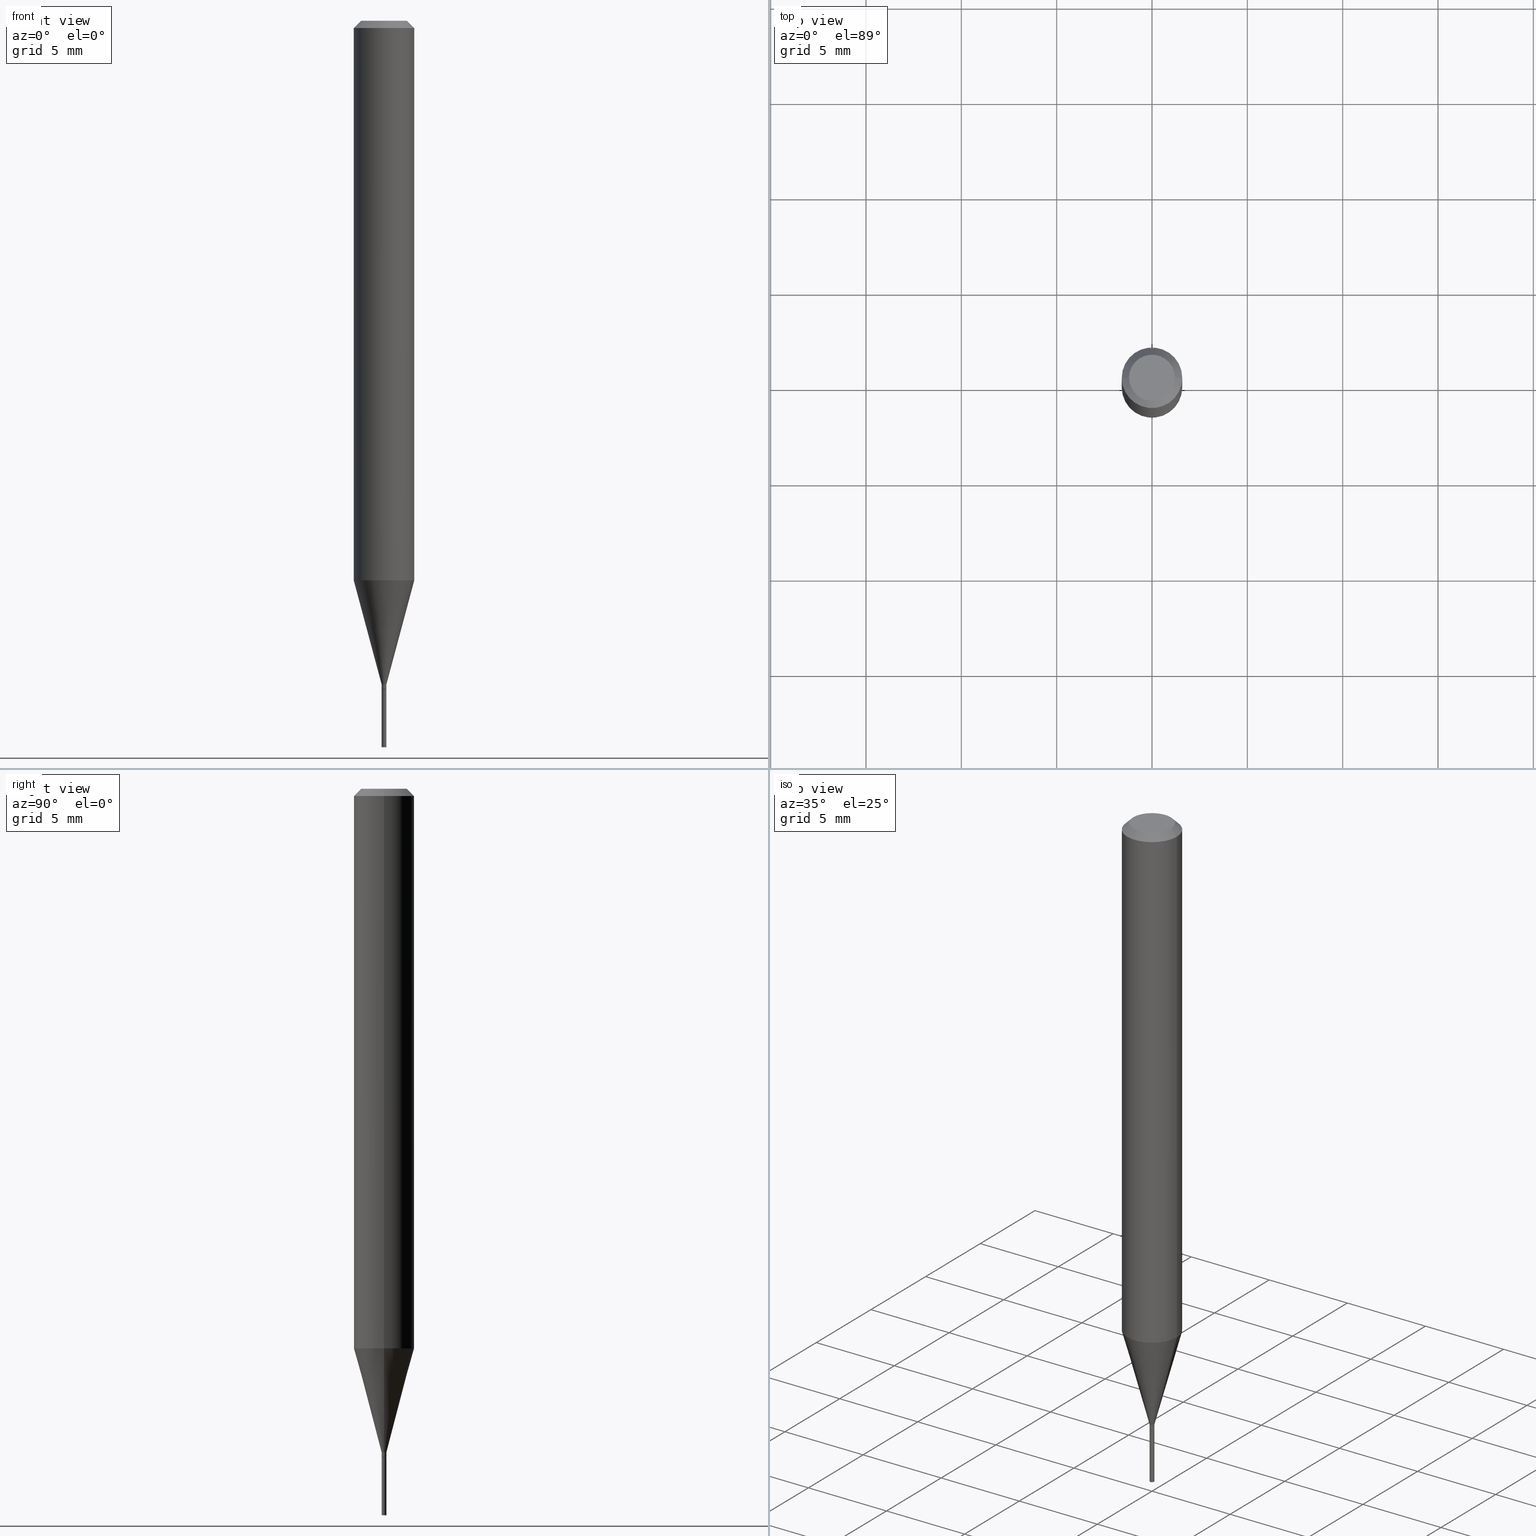
[diagram: canonical four-view strip — front | top / right | iso, engineering-drawing reading convention]
A machine part, canonical four-view strip (front | top / right | iso — engineering-drawing reading convention). The complete STEP part file that produces these views, byte-faithful:
ISO-10303-21;
HEADER;
FILE_DESCRIPTION (( 'STEP AP203' ),
    '1' );
FILE_NAME ('04238.STEP',
    '2024-03-14T17:27:27',
    ( '' ),
    ( '' ),
    'SwSTEP 2.0',
    'SolidWorks 2023',
    '' );
FILE_SCHEMA (( 'CONFIG_CONTROL_DESIGN' ));
ENDSEC;

DATA;
#1 = DIRECTION ( 'NONE',  ( 1.000000000000000000, -6.982962677686250144E-15, 0.000000000000000000 ) ) ;
#2 = ORIENTED_EDGE ( 'NONE', *, *, #358, .F. ) ;
#3 = CARTESIAN_POINT ( 'NONE',  ( 0.000000000000000000, 0.000000000000000000, 0.000000000000000000 ) ) ;
#4 = AXIS2_PLACEMENT_3D ( 'NONE', #55, #138, #413 ) ;
#5 = ADVANCED_FACE ( 'NONE', ( #90 ), #182, .T. ) ;
#6 = CARTESIAN_POINT ( 'NONE',  ( -0.004999999999999920307, -4.780971370146115787E-15, -1.379500000000000171 ) ) ;
#7 = CARTESIAN_POINT ( 'NONE',  ( 2.825511969075693350E-29, -4.034082253576240820E-15, -1.155407078564790080 ) ) ;
#8 = CARTESIAN_POINT ( 'NONE',  ( 3.576687321579069994E-29, -5.368277968210015545E-15, -1.500000000000000222 ) ) ;
#9 = ORIENTED_EDGE ( 'NONE', *, *, #406, .T. ) ;
#10 = CIRCLE ( 'NONE', #70, 0.06250000000000000000 ) ;
#11 = ADVANCED_FACE ( 'NONE', ( #417 ), #462, .T. ) ;
#12 = CARTESIAN_POINT ( 'NONE',  ( 3.374746952535488593E-29, -4.818244247603541543E-15, -1.380000000000000115 ) ) ;
#13 = EDGE_LOOP ( 'NONE', ( #124, #84, #391, #304 ) ) ;
#14 = DIRECTION ( 'NONE',  ( 2.445468806185136597E-29, -3.491481338843145583E-15, -1.000000000000000000 ) ) ;
#15 = PERSON_AND_ORGANIZATION ( #201, #426 ) ;
#16 = ORIENTED_EDGE ( 'NONE', *, *, #211, .T. ) ;
#17 = CARTESIAN_POINT ( 'NONE',  ( 3.373524218132396352E-29, -4.816498506934120039E-15, -1.379500000000000171 ) ) ;
#18 = CONICAL_SURFACE ( 'NONE', #217, 0.004999999999999938521, 0.2617993877991501850 ) ;
#19 = CC_DESIGN_PERSON_AND_ORGANIZATION_ASSIGNMENT ( #26, #178, ( #28 ) ) ;
#20 = LOCAL_TIME ( 13, 27, 27.00000000000000000, #36 ) ;
#21 = ORIENTED_EDGE ( 'NONE', *, *, #289, .T. ) ;
#22 = CARTESIAN_POINT ( 'NONE',  ( 0.000000000000000000, 0.000000000000000000, 0.000000000000000000 ) ) ;
#23 = ORIENTED_EDGE ( 'NONE', *, *, #294, .T. ) ;
#24 = CARTESIAN_POINT ( 'NONE',  ( 3.374746952535488593E-29, -4.818244247603541543E-15, -1.380000000000000115 ) ) ;
#25 = EDGE_CURVE ( 'NONE', #206, #163, #32, .T. ) ;
#26 = PERSON_AND_ORGANIZATION ( #201, #426 ) ;
#27 = CIRCLE ( 'NONE', #279, 0.004499999999999996191 ) ;
#28 = PRODUCT_DEFINITION_FORMATION_WITH_SPECIFIED_SOURCE ( 'ANY', '', #255, .NOT_KNOWN. ) ;
#29 = SECURITY_CLASSIFICATION_LEVEL ( 'unclassified' ) ;
#30 = DIRECTION ( 'NONE',  ( 1.000000000000000000, -6.982962677686266711E-15, 0.000000000000000000 ) ) ;
#31 = COORDINATED_UNIVERSAL_TIME_OFFSET ( 5, 0, .BEHIND. ) ;
#32 = CIRCLE ( 'NONE', #394, 0.06250000000000000000 ) ;
#33 = CARTESIAN_POINT ( 'NONE',  ( 0.004999999999999997502, -5.272136821653149826E-15, -1.500000000000000222 ) ) ;
#34 = AXIS2_PLACEMENT_3D ( 'NONE', #449, #136, #127 ) ;
#35 = CARTESIAN_POINT ( 'NONE',  ( -0.004499999999999996191, -4.783620597320226200E-15, -1.380000000000000115 ) ) ;
#36 = COORDINATED_UNIVERSAL_TIME_OFFSET ( 5, 0, .BEHIND. ) ;
#37 = FACE_OUTER_BOUND ( 'NONE', #273, .T. ) ;
#38 = EDGE_CURVE ( 'NONE', #54, #89, #27, .T. ) ;
#39 = CARTESIAN_POINT ( 'NONE',  ( 3.374746952535488593E-29, -4.818244247603541543E-15, -1.380000000000000115 ) ) ;
#40 = CIRCLE ( 'NONE', #311, 0.04749999999999999362 ) ;
#41 = APPROVAL_PERSON_ORGANIZATION ( #284, #88, #421 ) ;
#42 = CARTESIAN_POINT ( 'NONE',  ( 3.491481338846506475E-17, 0.004999999999995180175, -1.380000000000000115 ) ) ;
#43 = CARTESIAN_POINT ( 'NONE',  ( 2.825511969075693350E-29, -4.034082253576240820E-15, -1.155407078564790080 ) ) ;
#44 = EDGE_CURVE ( 'NONE', #274, #410, #409, .T. ) ;
#45 = VERTEX_POINT ( 'NONE', #73 ) ;
#46 = DIRECTION ( 'NONE',  ( -2.445468806185136597E-29, 3.491481338843145583E-15, 1.000000000000000000 ) ) ;
#47 = CARTESIAN_POINT ( 'NONE',  ( -0.004999999999999929848, 3.552713678800451083E-17, -2.459467545127418104E-31 ) ) ;
#48 = AXIS2_PLACEMENT_3D ( 'NONE', #219, #436, #291 ) ;
#49 = ADVANCED_BREP_SHAPE_REPRESENTATION ( '04238', ( #102, #356, #34 ), #249 ) ;
#50 = ORIENTED_EDGE ( 'NONE', *, *, #416, .T. ) ;
#51 = APPROVAL_PERSON_ORGANIZATION ( #141, #309, #396 ) ;
#52 = DIRECTION ( 'NONE',  ( 1.000000000000000000, -6.982962677686336130E-15, 0.000000000000000000 ) ) ;
#53 = EDGE_LOOP ( 'NONE', ( #134, #375 ) ) ;
#54 = VERTEX_POINT ( 'NONE', #221 ) ;
#55 = CARTESIAN_POINT ( 'NONE',  ( 3.350292264473637048E-29, -4.783329434215109894E-15, -1.370000000000000107 ) ) ;
#56 = ADVANCED_FACE ( 'NONE', ( #392 ), #258, .F. ) ;
#57 = ORIENTED_EDGE ( 'NONE', *, *, #190, .F. ) ;
#58 = CARTESIAN_POINT ( 'NONE',  ( 0.004999999999999938521, -4.818244247603540754E-15, -1.370000000000000107 ) ) ;
#59 = CARTESIAN_POINT ( 'NONE',  ( 0.000000000000000000, 0.000000000000000000, 0.000000000000000000 ) ) ;
#60 = EDGE_LOOP ( 'NONE', ( #99, #50, #16, #378 ) ) ;
#61 = DIRECTION ( 'NONE',  ( 1.000000000000000000, -6.982962677686336130E-15, 0.000000000000000000 ) ) ;
#62 = AXIS2_PLACEMENT_3D ( 'NONE', #59, #205, #451 ) ;
#63 = DIRECTION ( 'NONE',  ( 0.2588190451025214611, 1.565188264969620982E-15, 0.9659258262890679791 ) ) ;
#64 =( NAMED_UNIT ( * ) SI_UNIT ( $, .STERADIAN. ) SOLID_ANGLE_UNIT ( ) );
#65 = APPROVAL_DATE_TIME ( #282, #88 ) ;
#66 = CALENDAR_DATE ( 2024, 14, 3 ) ;
#67 = AXIS2_PLACEMENT_3D ( 'NONE', #465, #147, #362 ) ;
#68 = CARTESIAN_POINT ( 'NONE',  ( 0.004499999999999996191, -4.849667579653129396E-15, -1.380000000000000115 ) ) ;
#69 = CARTESIAN_POINT ( 'NONE',  ( 0.06250000000000000000, -4.888073874380388472E-16, -0.01499999999999999944 ) ) ;
#70 = AXIS2_PLACEMENT_3D ( 'NONE', #43, #46, #192 ) ;
#71 = ADVANCED_FACE ( 'NONE', ( #37 ), #233, .T. ) ;
#72 = PRODUCT_DEFINITION_SHAPE ( 'NONE', 'NONE',  #118 ) ;
#73 = CARTESIAN_POINT ( 'NONE',  ( -0.04749999999999999362, 3.578768372314216422E-16, 3.291702847796717707E-16 ) ) ;
#74 = DIRECTION ( 'NONE',  ( -2.445468806185136597E-29, 3.491481338843145583E-15, 1.000000000000000000 ) ) ;
#75 = DIRECTION ( 'NONE',  ( -0.7071067811865647812, 7.493145998870415691E-15, 0.7071067811865301422 ) ) ;
#76 = AXIS2_PLACEMENT_3D ( 'NONE', #155, #222, #189 ) ;
#77 = DIRECTION ( 'NONE',  ( -2.438088387897960049E-29, 3.491481338843145188E-15, 1.000000000000000000 ) ) ;
#78 = EDGE_LOOP ( 'NONE', ( #452, #9, #184, #381 ) ) ;
#79 = ADVANCED_FACE ( 'NONE', ( #188 ), #329, .T. ) ;
#80 = FACE_OUTER_BOUND ( 'NONE', #53, .T. ) ;
#81 = ORIENTED_EDGE ( 'NONE', *, *, #416, .F. ) ;
#82 = DIRECTION ( 'NONE',  ( -2.438088387897960049E-29, 3.491481338843145188E-15, 1.000000000000000000 ) ) ;
#83 = AXIS2_PLACEMENT_3D ( 'NONE', #121, #397, #52 ) ;
#84 = ORIENTED_EDGE ( 'NONE', *, *, #317, .T. ) ;
#85 = CIRCLE ( 'NONE', #129, 0.004999999999999920307 ) ;
#86 = DIRECTION ( 'NONE',  ( -1.000000000000000000, 6.982962677686266711E-15, 0.000000000000000000 ) ) ;
#87 = DIRECTION ( 'NONE',  ( 1.000000000000000000, -6.982962677686266711E-15, 4.876176775795935793E-29 ) ) ;
#88 = APPROVAL ( #247, 'UNSPECIFIED' ) ;
#89 = VERTEX_POINT ( 'NONE', #35 ) ;
#90 = FACE_OUTER_BOUND ( 'NONE', #78, .T. ) ;
#91 = LINE ( 'NONE', #58, #360 ) ;
#92 =( NAMED_UNIT ( * ) PLANE_ANGLE_UNIT ( ) SI_UNIT ( $, .RADIAN. ) );
#93 = ORIENTED_EDGE ( 'NONE', *, *, #38, .F. ) ;
#94 = AXIS2_PLACEMENT_3D ( 'NONE', #432, #372, #357 ) ;
#95 = ORIENTED_EDGE ( 'NONE', *, *, #422, .T. ) ;
#96 = CARTESIAN_POINT ( 'NONE',  ( 0.06250000000000000000, -4.470517420931631701E-15, -1.155407078564790080 ) ) ;
#97 = VECTOR ( 'NONE', #404, 39.37007874015748143 ) ;
#98 = ORIENTED_EDGE ( 'NONE', *, *, #211, .F. ) ;
#99 = ORIENTED_EDGE ( 'NONE', *, *, #423, .F. ) ;
#100 = PERSON_AND_ORGANIZATION_ROLE ( 'creator' ) ;
#101 = DATE_AND_TIME ( #431, #20 ) ;
#102 = MANIFOLD_SOLID_BREP ( 'Body-Move/Copy2[1]', #450 ) ;
#103 = APPROVAL_STATUS ( 'not_yet_approved' ) ;
#104 = CIRCLE ( 'NONE', #168, 0.06250000000000000000 ) ;
#105 = APPROVAL_STATUS ( 'not_yet_approved' ) ;
#106 = LOCAL_TIME ( 13, 27, 27.00000000000000000, #31 ) ;
#107 = EDGE_CURVE ( 'NONE', #54, #405, #430, .T. ) ;
#108 = DIRECTION ( 'NONE',  ( -2.445468806185136597E-29, 3.491481338843145583E-15, 1.000000000000000000 ) ) ;
#109 = DIRECTION ( 'NONE',  ( -2.445468806185136597E-29, 3.491481338843145583E-15, 1.000000000000000000 ) ) ;
#110 = CC_DESIGN_PERSON_AND_ORGANIZATION_ASSIGNMENT ( #181, #100, ( #118 ) ) ;
#111 = CLOSED_SHELL ( 'NONE', ( #216, #71, #5, #253, #223, #438, #393, #11, #56, #328, #162, #260 ) ) ;
#112 = AXIS2_PLACEMENT_3D ( 'NONE', #183, #290, #150 ) ;
#113 = LOCAL_TIME ( 13, 27, 27.00000000000000000, #386 ) ;
#114 = CARTESIAN_POINT ( 'NONE',  ( -8.049756633517713463E-45, 1.149291906609916432E-30, 3.291702847796741866E-16 ) ) ;
#115 = CARTESIAN_POINT ( 'NONE',  ( 0.004999999999999997502, -3.491481338843131630E-17, 2.438088387897967108E-31 ) ) ;
#116 = FACE_OUTER_BOUND ( 'NONE', #135, .T. ) ;
#117 = DIRECTION ( 'NONE',  ( -2.445468806185136597E-29, 3.491481338843145583E-15, 1.000000000000000000 ) ) ;
#118 = PRODUCT_DEFINITION ( 'UNKNOWN', '', #28, #220 ) ;
#119 = CC_DESIGN_APPROVAL ( #88, ( #118 ) ) ;
#120 = ORIENTED_EDGE ( 'NONE', *, *, #464, .F. ) ;
#121 = CARTESIAN_POINT ( 'NONE',  ( 3.668203209277704895E-29, -5.237222008264718177E-15, -1.500000000000000222 ) ) ;
#122 = ORIENTED_EDGE ( 'NONE', *, *, #252, .F. ) ;
#123 = CYLINDRICAL_SURFACE ( 'NONE', #146, 0.06250000000000000000 ) ;
#124 = ORIENTED_EDGE ( 'NONE', *, *, #422, .F. ) ;
#125 = ORIENTED_EDGE ( 'NONE', *, *, #207, .F. ) ;
#126 = EDGE_CURVE ( 'NONE', #131, #274, #297, .T. ) ;
#127 = DIRECTION ( 'NONE',  ( 1.000000000000000000, 0.000000000000000000, 0.000000000000000000 ) ) ;
#128 = CIRCLE ( 'NONE', #387, 0.004999999999999997502 ) ;
#129 = AXIS2_PLACEMENT_3D ( 'NONE', #17, #269, #346 ) ;
#130 = DIRECTION ( 'NONE',  ( -2.445468806185136877E-29, 3.491481338843145188E-15, 1.000000000000000000 ) ) ;
#131 = VERTEX_POINT ( 'NONE', #33 ) ;
#132 = ORIENTED_EDGE ( 'NONE', *, *, #252, .T. ) ;
#133 = DIRECTION ( 'NONE',  ( -2.445468806185136597E-29, 3.491481338843145583E-15, 1.000000000000000000 ) ) ;
#134 = ORIENTED_EDGE ( 'NONE', *, *, #294, .F. ) ;
#135 = EDGE_LOOP ( 'NONE', ( #229, #95, #441, #57 ) ) ;
#136 = DIRECTION ( 'NONE',  ( 0.000000000000000000, 0.000000000000000000, 1.000000000000000000 ) ) ;
#137 = AXIS2_PLACEMENT_3D ( 'NONE', #22, #210, #172 ) ;
#138 = DIRECTION ( 'NONE',  ( -2.445468806185136597E-29, 3.491481338843145583E-15, 1.000000000000000000 ) ) ;
#139 = VECTOR ( 'NONE', #415, 39.37007874015748143 ) ;
#140 = EDGE_LOOP ( 'NONE', ( #414, #382, #149, #81 ) ) ;
#141 = PERSON_AND_ORGANIZATION ( #201, #426 ) ;
#142 = ORIENTED_EDGE ( 'NONE', *, *, #369, .F. ) ;
#143 = DATE_TIME_ROLE ( 'creation_date' ) ;
#144 = EDGE_CURVE ( 'NONE', #342, #193, #330, .T. ) ;
#145 = COORDINATED_UNIVERSAL_TIME_OFFSET ( 5, 0, .BEHIND. ) ;
#146 = AXIS2_PLACEMENT_3D ( 'NONE', #261, #437, #161 ) ;
#147 = DIRECTION ( 'NONE',  ( -2.445468806185136597E-29, 3.491481338843145583E-15, 1.000000000000000000 ) ) ;
#148 = CARTESIAN_POINT ( 'NONE',  ( 0.06250000000000000000, -4.364351673553916694E-16, 3.047610484872459871E-30 ) ) ;
#149 = ORIENTED_EDGE ( 'NONE', *, *, #369, .T. ) ;
#150 = DIRECTION ( 'NONE',  ( -1.000000000000000000, 6.982962677686265922E-15, -4.876176775795935793E-29 ) ) ;
#151 = CARTESIAN_POINT ( 'NONE',  ( -0.004999999999999938521, -4.168897670576641529E-15, -1.370000000000000107 ) ) ;
#152 = ORIENTED_EDGE ( 'NONE', *, *, #196, .T. ) ;
#153 = CARTESIAN_POINT ( 'NONE',  ( 0.000000000000000000, 0.000000000000000000, 0.000000000000000000 ) ) ;
#154 = DIRECTION ( 'NONE',  ( 1.000000000000000000, -6.982962677686266711E-15, 4.876176775795936914E-29 ) ) ;
#155 = CARTESIAN_POINT ( 'NONE',  ( 3.668203209277705088E-31, -5.237222008264718399E-17, -0.01499999999999999944 ) ) ;
#156 = DIRECTION ( 'NONE',  ( -1.000000000000000000, 6.982962677686265922E-15, -4.876176775795935793E-29 ) ) ;
#157 = CC_DESIGN_PERSON_AND_ORGANIZATION_ASSIGNMENT ( #15, #460, ( #255 ) ) ;
#158 = FACE_OUTER_BOUND ( 'NONE', #171, .T. ) ;
#159 = AXIS2_PLACEMENT_3D ( 'NONE', #384, #14, #86 ) ;
#160 = EDGE_LOOP ( 'NONE', ( #266, #345, #270, #98 ) ) ;
#161 = DIRECTION ( 'NONE',  ( 1.000000000000000000, -6.982962677686266711E-15, 4.876176775795935793E-29 ) ) ;
#162 = ADVANCED_FACE ( 'NONE', ( #402 ), #318, .T. ) ;
#163 = VERTEX_POINT ( 'NONE', #371 ) ;
#164 = DIMENSIONAL_EXPONENTS ( 1.000000000000000000, 0.000000000000000000, 0.000000000000000000, 0.000000000000000000, 0.000000000000000000, 0.000000000000000000, 0.000000000000000000 ) ;
#165 = ORIENTED_EDGE ( 'NONE', *, *, #196, .F. ) ;
#166 = CYLINDRICAL_SURFACE ( 'NONE', #332, 0.06250000000000000000 ) ;
#167 = CARTESIAN_POINT ( 'NONE',  ( 0.000000000000000000, 0.000000000000000000, 0.000000000000000000 ) ) ;
#168 = AXIS2_PLACEMENT_3D ( 'NONE', #7, #74, #370 ) ;
#169 = ORIENTED_EDGE ( 'NONE', *, *, #336, .T. ) ;
#170 = LINE ( 'NONE', #379, #139 ) ;
#171 = EDGE_LOOP ( 'NONE', ( #93, #122 ) ) ;
#172 = DIRECTION ( 'NONE',  ( 1.000000000000000000, -6.982962677686267499E-15, 4.876176775795935232E-29 ) ) ;
#173 = CC_DESIGN_DATE_AND_TIME_ASSIGNMENT ( #319, #320, ( #244 ) ) ;
#174 = CARTESIAN_POINT ( 'NONE',  ( 3.374746952535488593E-29, -4.818244247603541543E-15, -1.380000000000000115 ) ) ;
#175 = DIRECTION ( 'NONE',  ( -2.445468806185136597E-29, 3.491481338843145583E-15, 1.000000000000000000 ) ) ;
#176 = AXIS2_PLACEMENT_3D ( 'NONE', #153, #191, #339 ) ;
#177 = CIRCLE ( 'NONE', #324, 0.004999999999999938521 ) ;
#178 = PERSON_AND_ORGANIZATION_ROLE ( 'creator' ) ;
#179 = CC_DESIGN_DATE_AND_TIME_ASSIGNMENT ( #214, #143, ( #118 ) ) ;
#180 = PERSON_AND_ORGANIZATION ( #201, #426 ) ;
#181 = PERSON_AND_ORGANIZATION ( #201, #426 ) ;
#182 = CONICAL_SURFACE ( 'NONE', #302, 0.06250000000000000000, 0.7853981633974373988 ) ;
#183 = CARTESIAN_POINT ( 'NONE',  ( 3.316907271900976096E-16, 0.04749999999999999362, -1.260221205212306812E-18 ) ) ;
#184 = ORIENTED_EDGE ( 'NONE', *, *, #25, .T. ) ;
#185 = APPLICATION_CONTEXT ( 'configuration controlled 3d designs of mechanical parts and assemblies' ) ;
#186 = CARTESIAN_POINT ( 'NONE',  ( -0.004999999999999997502, -4.992205991146124819E-15, -1.500000000000000222 ) ) ;
#187 = DIRECTION ( 'NONE',  ( 1.000000000000000000, -6.982962677686231212E-15, 0.000000000000000000 ) ) ;
#188 = FACE_OUTER_BOUND ( 'NONE', #199, .T. ) ;
#189 = DIRECTION ( 'NONE',  ( 1.000000000000000000, -6.982962677686266711E-15, 0.000000000000000000 ) ) ;
#190 = EDGE_CURVE ( 'NONE', #445, #206, #363, .T. ) ;
#191 = DIRECTION ( 'NONE',  ( -2.445468806185136597E-29, 3.491481338843145583E-15, 1.000000000000000000 ) ) ;
#192 = DIRECTION ( 'NONE',  ( 1.000000000000000000, -6.982962677686270655E-15, 0.000000000000000000 ) ) ;
#193 = VERTEX_POINT ( 'NONE', #151 ) ;
#194 = DIRECTION ( 'NONE',  ( 1.000000000000000000, -6.982962677686265922E-15, 4.876176775795935793E-29 ) ) ;
#195 = AXIS2_PLACEMENT_3D ( 'NONE', #8, #77, #194 ) ;
#196 = EDGE_CURVE ( 'NONE', #405, #342, #248, .T. ) ;
#197 = CIRCLE ( 'NONE', #433, 0.004499999999999996191 ) ;
#198 = CIRCLE ( 'NONE', #434, 0.004999999999999997502 ) ;
#199 = EDGE_LOOP ( 'NONE', ( #23, #306, #373, #403 ) ) ;
#200 = DIRECTION ( 'NONE',  ( -2.445468806185136597E-29, 3.491481338843145583E-15, 1.000000000000000000 ) ) ;
#201 = PERSON ( 'UNSPECIFIED', 'UNSPECIFIED', 'UNSPECIFIED', ('UNSPECIFIED'), ('UNSPECIFIED'), ('UNSPECIFIED') ) ;
#202 = EDGE_LOOP ( 'NONE', ( #254, #125, #420, #169 ) ) ;
#203 = CARTESIAN_POINT ( 'NONE',  ( 3.350292264473637048E-29, -4.783329434215109894E-15, -1.370000000000000107 ) ) ;
#204 = VERTEX_POINT ( 'NONE', #257 ) ;
#205 = DIRECTION ( 'NONE',  ( -2.445468806185136597E-29, 3.491481338843145583E-15, 1.000000000000000000 ) ) ;
#206 = VERTEX_POINT ( 'NONE', #69 ) ;
#207 = EDGE_CURVE ( 'NONE', #45, #204, #243, .T. ) ;
#208 = APPLICATION_PROTOCOL_DEFINITION ( 'international standard', 'config_control_design', 1994, #439 ) ;
#209 = FACE_OUTER_BOUND ( 'NONE', #235, .T. ) ;
#210 = DIRECTION ( 'NONE',  ( -2.445468806185136597E-29, 3.491481338843145583E-15, 1.000000000000000000 ) ) ;
#211 = EDGE_CURVE ( 'NONE', #447, #445, #91, .T. ) ;
#212 = CARTESIAN_POINT ( 'NONE',  ( 3.668203209277705088E-31, -5.237222008264718399E-17, -0.01499999999999999944 ) ) ;
#213 = VECTOR ( 'NONE', #251, 39.37007874015748143 ) ;
#214 = DATE_AND_TIME ( #66, #113 ) ;
#215 = PERSON_AND_ORGANIZATION ( #201, #426 ) ;
#216 = ADVANCED_FACE ( 'NONE', ( #242 ), #350, .T. ) ;
#217 = AXIS2_PLACEMENT_3D ( 'NONE', #368, #303, #428 ) ;
#218 = VECTOR ( 'NONE', #455, 39.37007874015748143 ) ;
#219 = CARTESIAN_POINT ( 'NONE',  ( 3.374746952535488593E-29, -4.818244247603541543E-15, -1.380000000000000115 ) ) ;
#220 = DESIGN_CONTEXT ( 'detailed design', #185, 'design' ) ;
#221 = CARTESIAN_POINT ( 'NONE',  ( 0.004499999999999996191, -4.849667579653129396E-15, -1.380000000000000115 ) ) ;
#222 = DIRECTION ( 'NONE',  ( -2.445468806185136597E-29, 3.491481338843145583E-15, 1.000000000000000000 ) ) ;
#223 = ADVANCED_FACE ( 'NONE', ( #226 ), #18, .T. ) ;
#224 = FACE_OUTER_BOUND ( 'NONE', #312, .T. ) ;
#225 = VECTOR ( 'NONE', #256, 39.37007874015748854 ) ;
#226 = FACE_OUTER_BOUND ( 'NONE', #160, .T. ) ;
#227 = DIRECTION ( 'NONE',  ( -2.445468806185136597E-29, 3.491481338843145583E-15, 1.000000000000000000 ) ) ;
#228 = DIRECTION ( 'NONE',  ( 1.000000000000000000, -6.982962677686231212E-15, 0.000000000000000000 ) ) ;
#229 = ORIENTED_EDGE ( 'NONE', *, *, #344, .T. ) ;
#230 = LINE ( 'NONE', #343, #293 ) ;
#231 = ORIENTED_EDGE ( 'NONE', *, *, #126, .T. ) ;
#232 = CARTESIAN_POINT ( 'NONE',  ( -0.06250000000000000000, 3.840629472727444916E-16, -0.01499999999999999944 ) ) ;
#233 = CONICAL_SURFACE ( 'NONE', #48, 0.004499999999999996191, 0.7853981633974728149 ) ;
#234 = LOCAL_TIME ( 13, 27, 27.00000000000000000, #145 ) ;
#235 = EDGE_LOOP ( 'NONE', ( #2, #21, #231, #380 ) ) ;
#236 = LINE ( 'NONE', #353, #286 ) ;
#237 = ORIENTED_EDGE ( 'NONE', *, *, #265, .F. ) ;
#238 = CYLINDRICAL_SURFACE ( 'NONE', #62, 0.004999999999999997502 ) ;
#239 = VERTEX_POINT ( 'NONE', #186 ) ;
#240 = PRODUCT_RELATED_PRODUCT_CATEGORY ( 'detail', '', ( #255 ) ) ;
#241 = EDGE_LOOP ( 'NONE', ( #457, #448 ) ) ;
#242 = FACE_OUTER_BOUND ( 'NONE', #245, .T. ) ;
#243 = CIRCLE ( 'NONE', #94, 0.04749999999999999362 ) ;
#244 = SECURITY_CLASSIFICATION ( '', '', #29 ) ;
#245 = EDGE_LOOP ( 'NONE', ( #152, #278, #307, #142 ) ) ;
#246 = ADVANCED_FACE ( 'NONE', ( #80 ), #435, .F. ) ;
#247 = APPROVAL_STATUS ( 'not_yet_approved' ) ;
#248 = CIRCLE ( 'NONE', #419, 0.004999999999999920307 ) ;
#249 =( GEOMETRIC_REPRESENTATION_CONTEXT ( 3 ) GLOBAL_UNCERTAINTY_ASSIGNED_CONTEXT ( ( #429 ) ) GLOBAL_UNIT_ASSIGNED_CONTEXT ( ( #315, #92, #64 ) ) REPRESENTATION_CONTEXT ( 'NONE', 'WORKASPACE' ) );
#250 = PERSON_AND_ORGANIZATION_ROLE ( 'design_supplier' ) ;
#251 = DIRECTION ( 'NONE',  ( -2.445468806185136877E-29, 3.491481338843145188E-15, 1.000000000000000000 ) ) ;
#252 = EDGE_CURVE ( 'NONE', #89, #54, #197, .T. ) ;
#253 = ADVANCED_FACE ( 'NONE', ( #116 ), #123, .T. ) ;
#254 = ORIENTED_EDGE ( 'NONE', *, *, #406, .F. ) ;
#255 = PRODUCT ( '04238', '04238', '', ( #418 ) ) ;
#256 = DIRECTION ( 'NONE',  ( 0.7071067811865647812, -2.468850131082438104E-15, 0.7071067811865301422 ) ) ;
#257 = CARTESIAN_POINT ( 'NONE',  ( 0.04749999999999999362, -4.035134999187572707E-16, 3.291702847796767504E-16 ) ) ;
#258 = PLANE ( 'NONE',  #112 ) ;
#259 = FACE_OUTER_BOUND ( 'NONE', #140, .T. ) ;
#260 = ADVANCED_FACE ( 'NONE', ( #259 ), #305, .T. ) ;
#261 = CARTESIAN_POINT ( 'NONE',  ( 0.000000000000000000, 0.000000000000000000, 0.000000000000000000 ) ) ;
#262 = DIRECTION ( 'NONE',  ( -2.445468806185136877E-29, 3.491481338843145188E-15, 1.000000000000000000 ) ) ;
#263 = ORIENTED_EDGE ( 'NONE', *, *, #38, .T. ) ;
#264 = DIRECTION ( 'NONE',  ( 2.438088387897960049E-29, -3.491481338843145188E-15, -1.000000000000000000 ) ) ;
#265 = EDGE_CURVE ( 'NONE', #89, #342, #230, .T. ) ;
#266 = ORIENTED_EDGE ( 'NONE', *, *, #337, .T. ) ;
#267 = DIRECTION ( 'NONE',  ( -0.7071067811865398012, 2.468850131082175808E-15, -0.7071067811865552333 ) ) ;
#268 = VERTEX_POINT ( 'NONE', #334 ) ;
#269 = DIRECTION ( 'NONE',  ( -2.445468806185136597E-29, 3.491481338843145583E-15, 1.000000000000000000 ) ) ;
#270 = ORIENTED_EDGE ( 'NONE', *, *, #344, .F. ) ;
#271 = LINE ( 'NONE', #310, #218 ) ;
#272 = EDGE_CURVE ( 'NONE', #45, #163, #446, .T. ) ;
#273 = EDGE_LOOP ( 'NONE', ( #263, #408, #165, #412 ) ) ;
#274 = VERTEX_POINT ( 'NONE', #444 ) ;
#275 =( LENGTH_UNIT ( ) NAMED_UNIT ( * ) SI_UNIT ( $, .METRE. ) );
#276 = DIRECTION ( 'NONE',  ( -1.000000000000000000, 6.982962677686266711E-15, 0.000000000000000000 ) ) ;
#277 = CARTESIAN_POINT ( 'NONE',  ( 0.004999999999999938521, -4.818244247603540754E-15, -1.370000000000000107 ) ) ;
#278 = ORIENTED_EDGE ( 'NONE', *, *, #144, .T. ) ;
#279 = AXIS2_PLACEMENT_3D ( 'NONE', #174, #385, #187 ) ;
#280 = DIRECTION ( 'NONE',  ( 1.000000000000000000, -6.982962677686224901E-15, 0.000000000000000000 ) ) ;
#281 = DIRECTION ( 'NONE',  ( -2.445468806185136597E-29, 3.491481338843145583E-15, 1.000000000000000000 ) ) ;
#282 = DATE_AND_TIME ( #424, #106 ) ;
#283 = APPROVAL_DATE_TIME ( #101, #309 ) ;
#284 = PERSON_AND_ORGANIZATION ( #201, #426 ) ;
#285 = CIRCLE ( 'NONE', #76, 0.06250000000000000000 ) ;
#286 = VECTOR ( 'NONE', #130, 39.37007874015748143 ) ;
#287 = PERSON_AND_ORGANIZATION ( #201, #426 ) ;
#288 = SHAPE_DEFINITION_REPRESENTATION ( #72, #49 ) ;
#289 = EDGE_CURVE ( 'NONE', #239, #131, #331, .T. ) ;
#290 = DIRECTION ( 'NONE',  ( 2.438088387897960049E-29, -3.491481338843145188E-15, -1.000000000000000000 ) ) ;
#291 = DIRECTION ( 'NONE',  ( 1.000000000000000000, -6.982962677686231212E-15, 0.000000000000000000 ) ) ;
#292 = DIRECTION ( 'NONE',  ( -2.445468806185136877E-29, 3.491481338843145188E-15, 1.000000000000000000 ) ) ;
#293 = VECTOR ( 'NONE', #75, 39.37007874015748854 ) ;
#294 = EDGE_CURVE ( 'NONE', #131, #239, #128, .T. ) ;
#295 = CC_DESIGN_APPROVAL ( #388, ( #28 ) ) ;
#296 = CARTESIAN_POINT ( 'NONE',  ( 3.668203209277704895E-29, -5.237222008264718177E-15, -1.500000000000000222 ) ) ;
#297 = LINE ( 'NONE', #115, #340 ) ;
#298 = EDGE_CURVE ( 'NONE', #204, #45, #40, .T. ) ;
#299 = DIRECTION ( 'NONE',  ( 1.000000000000000000, -6.982962677686267499E-15, 4.852736867747366768E-29 ) ) ;
#300 = LINE ( 'NONE', #440, #341 ) ;
#301 = CARTESIAN_POINT ( 'NONE',  ( 0.004999999999999929848, -3.491481338843084791E-17, 2.438088387897933389E-31 ) ) ;
#302 = AXIS2_PLACEMENT_3D ( 'NONE', #314, #453, #276 ) ;
#303 = DIRECTION ( 'NONE',  ( -2.445468806185136597E-29, 3.491481338843145583E-15, 1.000000000000000000 ) ) ;
#304 = ORIENTED_EDGE ( 'NONE', *, *, #336, .F. ) ;
#305 = CYLINDRICAL_SURFACE ( 'NONE', #176, 0.004999999999999929848 ) ;
#306 = ORIENTED_EDGE ( 'NONE', *, *, #358, .T. ) ;
#307 = ORIENTED_EDGE ( 'NONE', *, *, #337, .F. ) ;
#308 = DIRECTION ( 'NONE',  ( -2.445468806185136597E-29, 3.491481338843145583E-15, 1.000000000000000000 ) ) ;
#309 = APPROVAL ( #105, 'UNSPECIFIED' ) ;
#310 = CARTESIAN_POINT ( 'NONE',  ( -0.004999999999999938521, -4.747802297427104853E-15, -1.370000000000000107 ) ) ;
#311 = AXIS2_PLACEMENT_3D ( 'NONE', #114, #117, #299 ) ;
#312 = EDGE_LOOP ( 'NONE', ( #349, #383 ) ) ;
#313 = FACE_OUTER_BOUND ( 'NONE', #60, .T. ) ;
#314 = CARTESIAN_POINT ( 'NONE',  ( 3.668203209277705088E-31, -5.237222008264718399E-17, -0.01499999999999999944 ) ) ;
#315 =( CONVERSION_BASED_UNIT ( 'INCH', #347 ) LENGTH_UNIT ( ) NAMED_UNIT ( #164 ) );
#316 = CARTESIAN_POINT ( 'NONE',  ( 0.004999999999999920307, -4.851413320322550900E-15, -1.379500000000000171 ) ) ;
#317 = EDGE_CURVE ( 'NONE', #268, #445, #104, .T. ) ;
#318 = CONICAL_SURFACE ( 'NONE', #456, 0.004499999999999996191, 0.7853981633974728149 ) ;
#319 = DATE_AND_TIME ( #459, #234 ) ;
#320 = DATE_TIME_ROLE ( 'classification_date' ) ;
#321 = APPROVAL_ROLE ( '' ) ;
#322 = CC_DESIGN_PERSON_AND_ORGANIZATION_ASSIGNMENT ( #180, #461, ( #244 ) ) ;
#323 = VECTOR ( 'NONE', #292, 39.37007874015748143 ) ;
#324 = AXIS2_PLACEMENT_3D ( 'NONE', #203, #175, #280 ) ;
#325 = DIRECTION ( 'NONE',  ( -2.445468806185136877E-29, 3.491481338843145188E-15, 1.000000000000000000 ) ) ;
#326 = EDGE_LOOP ( 'NONE', ( #237, #132, #338, #120 ) ) ;
#327 = CARTESIAN_POINT ( 'NONE',  ( 3.373524218132396352E-29, -4.816498506934120039E-15, -1.379500000000000171 ) ) ;
#328 = ADVANCED_FACE ( 'NONE', ( #158 ), #398, .F. ) ;
#329 = CYLINDRICAL_SURFACE ( 'NONE', #442, 0.004999999999999997502 ) ;
#330 = LINE ( 'NONE', #47, #213 ) ;
#331 = CIRCLE ( 'NONE', #83, 0.004999999999999997502 ) ;
#332 = AXIS2_PLACEMENT_3D ( 'NONE', #167, #308, #87 ) ;
#333 = DIRECTION ( 'NONE',  ( 1.000000000000000000, -6.982962677686224901E-15, 0.000000000000000000 ) ) ;
#334 = CARTESIAN_POINT ( 'NONE',  ( -0.06250000000000000000, -3.589993043726178204E-15, -1.155407078564790080 ) ) ;
#335 = DIRECTION ( 'NONE',  ( -2.445468806185136597E-29, 3.491481338843145583E-15, 1.000000000000000000 ) ) ;
#336 = EDGE_CURVE ( 'NONE', #163, #206, #285, .T. ) ;
#337 = EDGE_CURVE ( 'NONE', #447, #193, #348, .T. ) ;
#338 = ORIENTED_EDGE ( 'NONE', *, *, #107, .T. ) ;
#339 = DIRECTION ( 'NONE',  ( 1.000000000000000000, -6.982962677686267499E-15, 4.876176775795935232E-29 ) ) ;
#340 = VECTOR ( 'NONE', #325, 39.37007874015748143 ) ;
#341 = VECTOR ( 'NONE', #262, 39.37007874015748143 ) ;
#342 = VERTEX_POINT ( 'NONE', #6 ) ;
#343 = CARTESIAN_POINT ( 'NONE',  ( -0.004499999999999996191, -4.786269824494336612E-15, -1.380000000000000115 ) ) ;
#344 = EDGE_CURVE ( 'NONE', #445, #268, #10, .T. ) ;
#345 = ORIENTED_EDGE ( 'NONE', *, *, #423, .T. ) ;
#346 = DIRECTION ( 'NONE',  ( 1.000000000000000000, -6.982962677686250144E-15, 0.000000000000000000 ) ) ;
#347 = LENGTH_MEASURE_WITH_UNIT ( LENGTH_MEASURE( 0.02539999999999999897 ), #275 );
#348 = CIRCLE ( 'NONE', #400, 0.004999999999999938521 ) ;
#349 = ORIENTED_EDGE ( 'NONE', *, *, #44, .T. ) ;
#350 = CYLINDRICAL_SURFACE ( 'NONE', #137, 0.004999999999999929848 ) ;
#351 = FACE_OUTER_BOUND ( 'NONE', #13, .T. ) ;
#352 = ADVANCED_FACE ( 'NONE', ( #224 ), #367, .F. ) ;
#353 = CARTESIAN_POINT ( 'NONE',  ( -0.06250000000000000000, 4.440892098500626162E-16, -3.074334431409316114E-30 ) ) ;
#354 = DATE_AND_TIME ( #359, #411 ) ;
#355 = APPROVAL_DATE_TIME ( #354, #388 ) ;
#356 = MANIFOLD_SOLID_BREP ( 'Body-Move/Copy2[2]', #111 ) ;
#357 = DIRECTION ( 'NONE',  ( 1.000000000000000000, -6.982962677686267499E-15, 4.852736867747366768E-29 ) ) ;
#358 = EDGE_CURVE ( 'NONE', #239, #410, #300, .T. ) ;
#359 = CALENDAR_DATE ( 2024, 14, 3 ) ;
#360 = VECTOR ( 'NONE', #63, 39.37007874015748143 ) ;
#361 = CC_DESIGN_SECURITY_CLASSIFICATION ( #244, ( #28 ) ) ;
#362 = DIRECTION ( 'NONE',  ( 1.000000000000000000, -6.982962677686336130E-15, 0.000000000000000000 ) ) ;
#363 = LINE ( 'NONE', #148, #323 ) ;
#364 = CARTESIAN_POINT ( 'NONE',  ( 3.350292264473637048E-29, -4.783329434215109894E-15, -1.370000000000000107 ) ) ;
#365 = VECTOR ( 'NONE', #267, 39.37007874015748143 ) ;
#366 = AXIS2_PLACEMENT_3D ( 'NONE', #42, #264, #156 ) ;
#367 = PLANE ( 'NONE',  #366 ) ;
#368 = CARTESIAN_POINT ( 'NONE',  ( 3.350292264473637048E-29, -4.783329434215109894E-15, -1.370000000000000107 ) ) ;
#369 = EDGE_CURVE ( 'NONE', #405, #447, #401, .T. ) ;
#370 = DIRECTION ( 'NONE',  ( 1.000000000000000000, -6.982962677686270655E-15, 0.000000000000000000 ) ) ;
#371 = CARTESIAN_POINT ( 'NONE',  ( -0.06250000000000000000, -1.599138026979381531E-15, -0.01499999999999999944 ) ) ;
#372 = DIRECTION ( 'NONE',  ( -2.445468806185136597E-29, 3.491481338843145583E-15, 1.000000000000000000 ) ) ;
#373 = ORIENTED_EDGE ( 'NONE', *, *, #44, .F. ) ;
#374 = DIRECTION ( 'NONE',  ( 1.000000000000000000, -6.982962677686265922E-15, 4.876176775795935793E-29 ) ) ;
#375 = ORIENTED_EDGE ( 'NONE', *, *, #289, .F. ) ;
#376 = DIRECTION ( 'NONE',  ( 1.000000000000000000, -6.982962677686231212E-15, 0.000000000000000000 ) ) ;
#377 = ADVANCED_FACE ( 'NONE', ( #209 ), #238, .T. ) ;
#378 = ORIENTED_EDGE ( 'NONE', *, *, #317, .F. ) ;
#379 = CARTESIAN_POINT ( 'NONE',  ( 0.06250000000000000000, -4.811533449433679005E-16, -0.01499999999999999944 ) ) ;
#380 = ORIENTED_EDGE ( 'NONE', *, *, #458, .F. ) ;
#381 = ORIENTED_EDGE ( 'NONE', *, *, #272, .F. ) ;
#382 = ORIENTED_EDGE ( 'NONE', *, *, #464, .T. ) ;
#383 = ORIENTED_EDGE ( 'NONE', *, *, #458, .T. ) ;
#384 = CARTESIAN_POINT ( 'NONE',  ( 3.668203209277705088E-31, -5.237222008264718399E-17, -0.01499999999999999944 ) ) ;
#385 = DIRECTION ( 'NONE',  ( -2.445468806185136597E-29, 3.491481338843145583E-15, 1.000000000000000000 ) ) ;
#386 = COORDINATED_UNIVERSAL_TIME_OFFSET ( 5, 0, .BEHIND. ) ;
#387 = AXIS2_PLACEMENT_3D ( 'NONE', #296, #200, #407 ) ;
#388 = APPROVAL ( #103, 'UNSPECIFIED' ) ;
#389 = APPLICATION_PROTOCOL_DEFINITION ( 'international standard', 'config_control_design', 1994, #185 ) ;
#390 = CARTESIAN_POINT ( 'NONE',  ( 3.374746952535488593E-29, -4.818244247603541543E-15, -1.380000000000000115 ) ) ;
#391 = ORIENTED_EDGE ( 'NONE', *, *, #190, .T. ) ;
#392 = FACE_OUTER_BOUND ( 'NONE', #241, .T. ) ;
#393 = ADVANCED_FACE ( 'NONE', ( #351 ), #166, .T. ) ;
#394 = AXIS2_PLACEMENT_3D ( 'NONE', #212, #281, #30 ) ;
#395 = CONICAL_SURFACE ( 'NONE', #4, 0.004999999999999938521, 0.2617993877991501850 ) ;
#396 = APPROVAL_ROLE ( '' ) ;
#397 = DIRECTION ( 'NONE',  ( -2.445468806185136597E-29, 3.491481338843145583E-15, 1.000000000000000000 ) ) ;
#398 = PLANE ( 'NONE',  #425 ) ;
#399 = CC_DESIGN_PERSON_AND_ORGANIZATION_ASSIGNMENT ( #287, #250, ( #28 ) ) ;
#400 = AXIS2_PLACEMENT_3D ( 'NONE', #364, #335, #333 ) ;
#401 = LINE ( 'NONE', #301, #97 ) ;
#402 = FACE_OUTER_BOUND ( 'NONE', #326, .T. ) ;
#403 = ORIENTED_EDGE ( 'NONE', *, *, #126, .F. ) ;
#404 = DIRECTION ( 'NONE',  ( -2.445468806185136877E-29, 3.491481338843145188E-15, 1.000000000000000000 ) ) ;
#405 = VERTEX_POINT ( 'NONE', #316 ) ;
#406 = EDGE_CURVE ( 'NONE', #204, #206, #170, .T. ) ;
#407 = DIRECTION ( 'NONE',  ( 1.000000000000000000, -6.982962677686336130E-15, 0.000000000000000000 ) ) ;
#408 = ORIENTED_EDGE ( 'NONE', *, *, #265, .T. ) ;
#409 = CIRCLE ( 'NONE', #67, 0.004999999999999997502 ) ;
#410 = VERTEX_POINT ( 'NONE', #454 ) ;
#411 = LOCAL_TIME ( 13, 27, 27.00000000000000000, #427 ) ;
#412 = ORIENTED_EDGE ( 'NONE', *, *, #107, .F. ) ;
#413 = DIRECTION ( 'NONE',  ( 1.000000000000000000, -6.982962677686224901E-15, 0.000000000000000000 ) ) ;
#414 = ORIENTED_EDGE ( 'NONE', *, *, #144, .F. ) ;
#415 = DIRECTION ( 'NONE',  ( 0.7071067811865398012, -7.319954787623229224E-15, -0.7071067811865552333 ) ) ;
#416 = EDGE_CURVE ( 'NONE', #193, #447, #177, .T. ) ;
#417 = FACE_OUTER_BOUND ( 'NONE', #202, .T. ) ;
#418 = MECHANICAL_CONTEXT ( 'NONE', #439, 'mechanical' ) ;
#419 = AXIS2_PLACEMENT_3D ( 'NONE', #327, #109, #1 ) ;
#420 = ORIENTED_EDGE ( 'NONE', *, *, #272, .T. ) ;
#421 = APPROVAL_ROLE ( '' ) ;
#422 = EDGE_CURVE ( 'NONE', #268, #163, #236, .T. ) ;
#423 = EDGE_CURVE ( 'NONE', #193, #268, #271, .T. ) ;
#424 = CALENDAR_DATE ( 2024, 14, 3 ) ;
#425 = AXIS2_PLACEMENT_3D ( 'NONE', #39, #82, #374 ) ;
#426 = ORGANIZATION ( 'UNSPECIFIED', 'UNSPECIFIED', '' ) ;
#427 = COORDINATED_UNIVERSAL_TIME_OFFSET ( 5, 0, .BEHIND. ) ;
#428 = DIRECTION ( 'NONE',  ( 1.000000000000000000, -6.982962677686224901E-15, 0.000000000000000000 ) ) ;
#429 = UNCERTAINTY_MEASURE_WITH_UNIT (LENGTH_MEASURE( 1.000000000000000082E-05 ), #315, 'distance_accuracy_value', 'NONE');
#430 = LINE ( 'NONE', #68, #225 ) ;
#431 = CALENDAR_DATE ( 2024, 14, 3 ) ;
#432 = CARTESIAN_POINT ( 'NONE',  ( -8.049756633517713463E-45, 1.149291906609916432E-30, 3.291702847796741866E-16 ) ) ;
#433 = AXIS2_PLACEMENT_3D ( 'NONE', #12, #227, #376 ) ;
#434 = AXIS2_PLACEMENT_3D ( 'NONE', #24, #133, #61 ) ;
#435 = PLANE ( 'NONE',  #195 ) ;
#436 = DIRECTION ( 'NONE',  ( -2.445468806185136597E-29, 3.491481338843145583E-15, 1.000000000000000000 ) ) ;
#437 = DIRECTION ( 'NONE',  ( -2.445468806185136597E-29, 3.491481338843145583E-15, 1.000000000000000000 ) ) ;
#438 = ADVANCED_FACE ( 'NONE', ( #313 ), #395, .T. ) ;
#439 = APPLICATION_CONTEXT ( 'configuration controlled 3d designs of mechanical parts and assemblies' ) ;
#440 = CARTESIAN_POINT ( 'NONE',  ( -0.004999999999999997502, 3.552713678800499154E-17, -2.459467545127451822E-31 ) ) ;
#441 = ORIENTED_EDGE ( 'NONE', *, *, #25, .F. ) ;
#442 = AXIS2_PLACEMENT_3D ( 'NONE', #3, #108, #154 ) ;
#443 = APPROVAL_PERSON_ORGANIZATION ( #215, #388, #321 ) ;
#444 = CARTESIAN_POINT ( 'NONE',  ( 0.004999999999999997502, -4.853159060991973192E-15, -1.380000000000000115 ) ) ;
#445 = VERTEX_POINT ( 'NONE', #96 ) ;
#446 = LINE ( 'NONE', #232, #365 ) ;
#447 = VERTEX_POINT ( 'NONE', #277 ) ;
#448 = ORIENTED_EDGE ( 'NONE', *, *, #298, .T. ) ;
#449 = CARTESIAN_POINT ( 'NONE',  ( 0.000000000000000000, 0.000000000000000000, 0.000000000000000000 ) ) ;
#450 = CLOSED_SHELL ( 'NONE', ( #79, #246, #377, #352 ) ) ;
#451 = DIRECTION ( 'NONE',  ( 1.000000000000000000, -6.982962677686266711E-15, 4.876176775795936914E-29 ) ) ;
#452 = ORIENTED_EDGE ( 'NONE', *, *, #298, .F. ) ;
#453 = DIRECTION ( 'NONE',  ( 2.445468806185136597E-29, -3.491481338843145583E-15, -1.000000000000000000 ) ) ;
#454 = CARTESIAN_POINT ( 'NONE',  ( -0.004999999999999997502, -4.992205991146124819E-15, -1.380000000000000115 ) ) ;
#455 = DIRECTION ( 'NONE',  ( -0.2588190451025214611, 5.211531920934550253E-15, 0.9659258262890679791 ) ) ;
#456 = AXIS2_PLACEMENT_3D ( 'NONE', #390, #466, #228 ) ;
#457 = ORIENTED_EDGE ( 'NONE', *, *, #207, .T. ) ;
#458 = EDGE_CURVE ( 'NONE', #410, #274, #198, .T. ) ;
#459 = CALENDAR_DATE ( 2024, 14, 3 ) ;
#460 = PERSON_AND_ORGANIZATION_ROLE ( 'design_owner' ) ;
#461 = PERSON_AND_ORGANIZATION_ROLE ( 'classification_officer' ) ;
#462 = CONICAL_SURFACE ( 'NONE', #159, 0.06250000000000000000, 0.7853981633974373988 ) ;
#463 = CC_DESIGN_APPROVAL ( #309, ( #244 ) ) ;
#464 = EDGE_CURVE ( 'NONE', #342, #405, #85, .T. ) ;
#465 = CARTESIAN_POINT ( 'NONE',  ( 3.374746952535488593E-29, -4.818244247603541543E-15, -1.380000000000000115 ) ) ;
#466 = DIRECTION ( 'NONE',  ( -2.445468806185136597E-29, 3.491481338843145583E-15, 1.000000000000000000 ) ) ;
ENDSEC;
END-ISO-10303-21;
